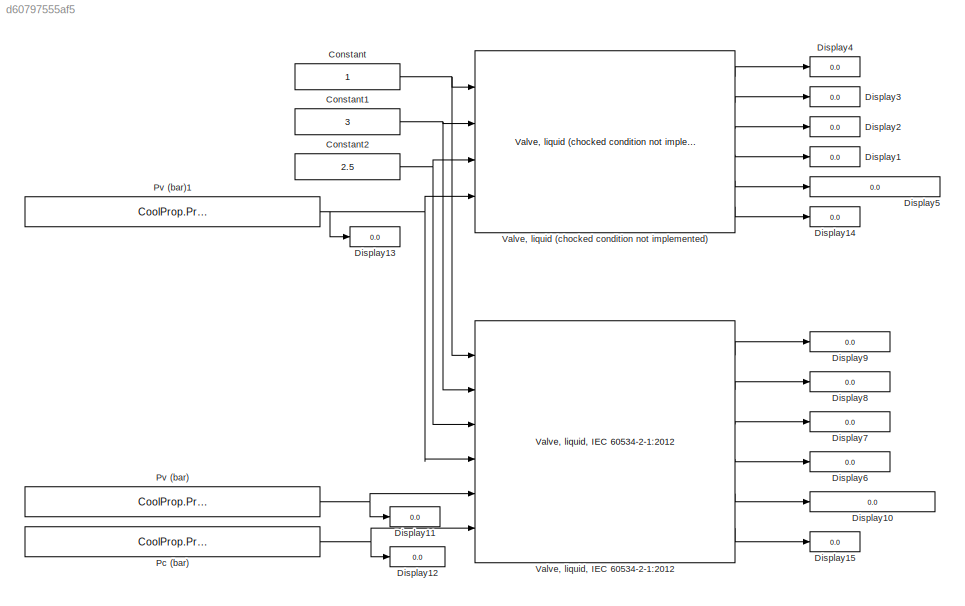
MODEL slx_d60797555af5
KIND model
CONFIG AbsTol = auto
CONFIG EnableMultiTasking = off
CONFIG FixedStep = auto
CONFIG MaxStep = auto
CONFIG MinStep = auto
CONFIG RelTol = 1e-3
CONFIG SampleTimeConstraint = Unconstrained
CONFIG Solver = VariableStepAuto
CONFIG SolverName = VariableStepAuto
CONFIG StartTime = 0.0
CONFIG StopTime = 0
BLOCK [Constant] Constant
BLOCK [Constant] Constant1
  Value = 3
BLOCK [Constant] Constant2
  Value = 2.5
BLOCK [Display] Display1
  Decimation = 1
  Ports = [1]
BLOCK [Display] Display10
  Decimation = 1
  Ports = [1]
BLOCK [Display] Display11
  Decimation = 1
  Ports = [1]
BLOCK [Display] Display12
  Decimation = 1
  Ports = [1]
BLOCK [Display] Display13
  Decimation = 1
  Ports = [1]
BLOCK [Display] Display14
  Decimation = 1
  Ports = [1]
BLOCK [Display] Display15
  Decimation = 1
  Ports = [1]
BLOCK [Display] Display2
  Decimation = 1
  Ports = [1]
BLOCK [Display] Display3
  Decimation = 1
  Ports = [1]
BLOCK [Display] Display4
  Decimation = 1
  Ports = [1]
BLOCK [Display] Display5
  Decimation = 1
  Ports = [1]
BLOCK [Display] Display6
  Decimation = 1
  Ports = [1]
BLOCK [Display] Display7
  Decimation = 1
  Ports = [1]
BLOCK [Display] Display8
  Decimation = 1
  Ports = [1]
BLOCK [Display] Display9
  Decimation = 1
  Ports = [1]
BLOCK [Constant] Pc (bar)
  Value = CoolProp.Props1SI('Pcrit','Acetone')*1e-5
BLOCK [Constant] Pv (bar)
  Value = CoolProp.PropsSI('P','T',60+273.15,'Q',0,'Acetone')*1e-5
BLOCK [Constant] Pv (bar)1
  Value = CoolProp.PropsSI('Dmass','T',60+273.15,'P',3*1e5,'Acetone')
BLOCK [Reference] Valve, liquid (chocked condition not implemented)  REF=thermochemical/Valves/Valve, liquid (chocked condition not implemented)  (lib defined in slx_f9e0643dc704)
  Ports = [4, 6]
  SourceBlock = thermochemical/Valves/Valve, liquid (chocked condition not implemented)
  SourceProductName = @ Thermochemical
  SourceType = valve_liquid
BLOCK [Reference] Valve, liquid, IEC 60534-2-1:2012  REF=thermochemical/Valves/Valve, liquid, IEC 60534-2-1:2012  (lib defined in slx_f9e0643dc704)
  Ports = [6, 6]
  SourceBlock = thermochemical/Valves/Valve, liquid, IEC 60534-2-1:2012
  SourceProductName = @ Thermochemical
  SourceType = valve_liquid_IEC60534_2_1
NET Constant1:1 -> Valve, liquid (chocked condition not implemented):2, Valve, liquid, IEC 60534-2-1:2012:2
NET Constant2:1 -> Valve, liquid (chocked condition not implemented):3, Valve, liquid, IEC 60534-2-1:2012:3
NET Constant:1 -> Valve, liquid (chocked condition not implemented):1, Valve, liquid, IEC 60534-2-1:2012:1
NET Pc (bar):1 -> Display12:1, Valve, liquid, IEC 60534-2-1:2012:6
NET Pv (bar)1:1 -> Display13:1, Valve, liquid (chocked condition not implemented):4, Valve, liquid, IEC 60534-2-1:2012:4
NET Pv (bar):1 -> Display11:1, Valve, liquid, IEC 60534-2-1:2012:5
LINE Valve, liquid (chocked condition not implemented):1 -> Display4:1
LINE Valve, liquid (chocked condition not implemented):2 -> Display3:1
LINE Valve, liquid (chocked condition not implemented):3 -> Display2:1
LINE Valve, liquid (chocked condition not implemented):4 -> Display1:1
LINE Valve, liquid (chocked condition not implemented):5 -> Display5:1
LINE Valve, liquid (chocked condition not implemented):6 -> Display14:1
LINE Valve, liquid, IEC 60534-2-1:2012:1 -> Display9:1
LINE Valve, liquid, IEC 60534-2-1:2012:2 -> Display8:1
LINE Valve, liquid, IEC 60534-2-1:2012:3 -> Display7:1
LINE Valve, liquid, IEC 60534-2-1:2012:4 -> Display6:1
LINE Valve, liquid, IEC 60534-2-1:2012:5 -> Display10:1
LINE Valve, liquid, IEC 60534-2-1:2012:6 -> Display15:1
note: NET lines group one-source signal fan-out (src -> all destinations, sorted); 1:1 wires keep LINE
